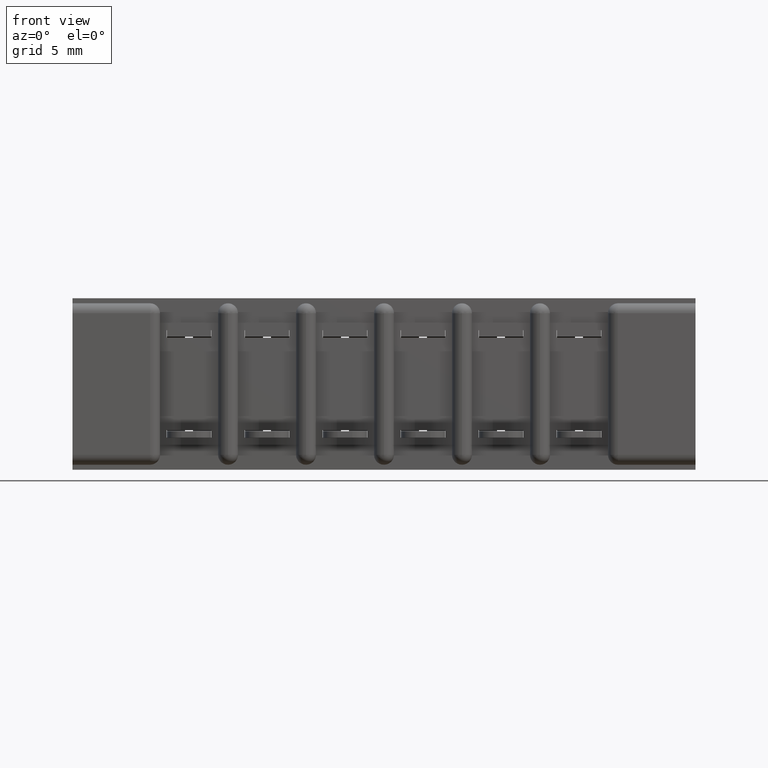
[diagram: clean part render]
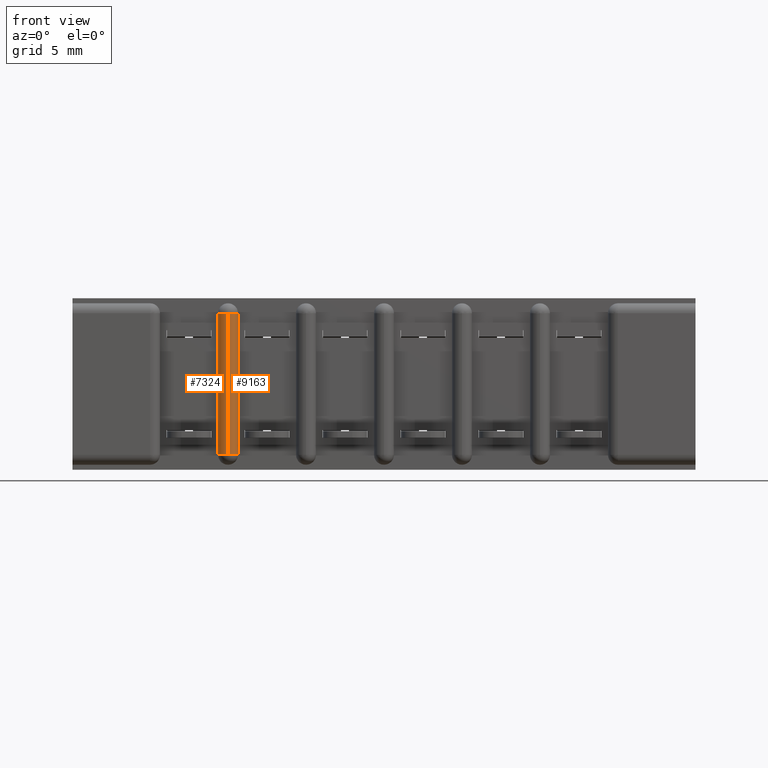
[diagram: same view with one multi-face feature highlighted, each face labeled with its STEP entity id]
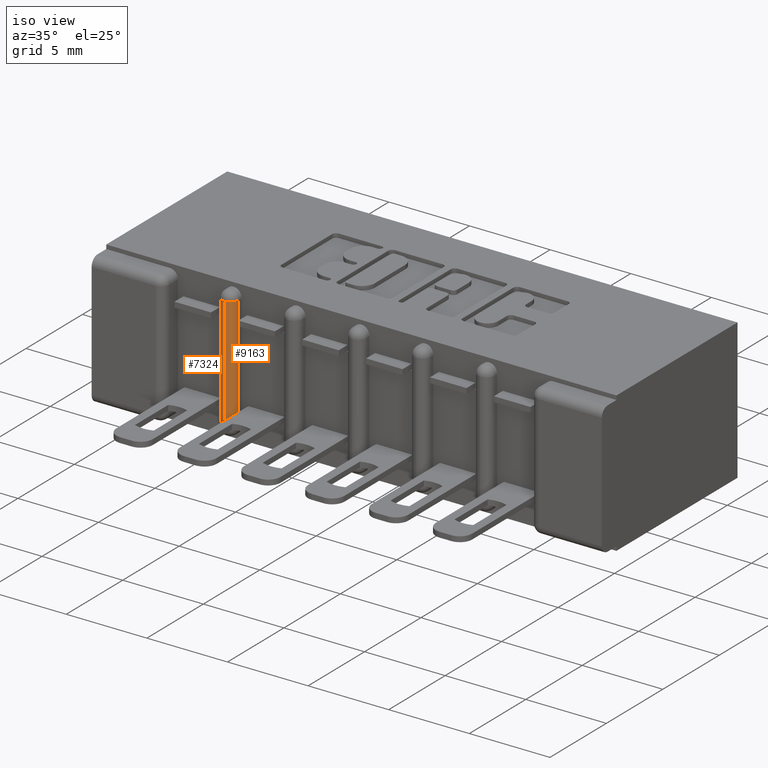
[diagram: same view with one multi-face feature highlighted, each face labeled with its STEP entity id]
A machine part, front view. The highlighted faces form ONE feature: a constant-radius fillet chain: 2 tangent blend faces with common blend radius 0.508 mm. The faces share edges in the B-rep.
A second angle (iso view) of the same feature is appended — it is thin or edge-on in the first view.
Their STEP definitions:
[1] entity #7324 (Cylinder):
#396 = DIRECTION ( 'NONE',  ( 0.0000000000000000000, 0.0000000000000000000, 1.000000000000000000 ) ) ;
#1853 = CARTESIAN_POINT ( 'NONE',  ( 0.6090000000000004300, 0.02000000000000000000, -0.3130000000000006700 ) ) ;
#2148 = LINE ( 'NONE', #2842, #4821 ) ;
#2341 = DIRECTION ( 'NONE',  ( -1.991142852524972300E-015, 0.0000000000000000000, 1.000000000000000000 ) ) ;
#2372 = CARTESIAN_POINT ( 'NONE',  ( 0.6090000000000005400, 0.04000000000000000100, -0.3430000000000001900 ) ) ;
#2483 = CIRCLE ( 'NONE', #5493, 0.01999999999999999000 ) ;
#2681 = DIRECTION ( 'NONE',  ( -1.000000000000000000, 0.0000000000000000000, 1.707404996040165300E-015 ) ) ;
#2842 = CARTESIAN_POINT ( 'NONE',  ( 0.6089999999999998700, 0.02000000000000000000, -0.02999999999999927000 ) ) ;
#2852 = CARTESIAN_POINT ( 'NONE',  ( 0.6090000000000005400, 0.04000000000000000100, -0.3130000000000007200 ) ) ;
#3402 = VERTEX_POINT ( 'NONE', #1853 ) ;
#3465 = EDGE_CURVE ( 'NONE', #9189, #3402, #8131, .T. ) ;
#3529 = CARTESIAN_POINT ( 'NONE',  ( 0.5889999999999999700, 0.04000000000000000100, -0.02999999999999930800 ) ) ;
#3547 = CARTESIAN_POINT ( 'NONE',  ( 0.6089999999999998700, 0.02000000000000000000, -0.02999999999999923200 ) ) ;
#3701 = FACE_OUTER_BOUND ( 'NONE', #6292, .T. ) ;
#4050 = ORIENTED_EDGE ( 'NONE', *, *, #3465, .T. ) ;
#4181 = EDGE_CURVE ( 'NONE', #3402, #4255, #2148, .T. ) ;
#4220 = DIRECTION ( 'NONE',  ( -1.707404996040229400E-015, -0.0000000000000000000, -1.000000000000000000 ) ) ;
#4255 = VERTEX_POINT ( 'NONE', #3547 ) ;
#4321 = DIRECTION ( 'NONE',  ( -1.592914282019978200E-015, 0.0000000000000000000, 1.000000000000000000 ) ) ;
#4639 = VECTOR ( 'NONE', #8165, 39.37007874015748100 ) ;
#4679 = ORIENTED_EDGE ( 'NONE', *, *, #8826, .F. ) ;
#4691 = AXIS2_PLACEMENT_3D ( 'NONE', #2372, #2341, #5367 ) ;
#4821 = VECTOR ( 'NONE', #4321, 39.37007874015748100 ) ;
#5367 = DIRECTION ( 'NONE',  ( 1.000000000000000000, 0.0000000000000000000, 3.414809992080318900E-015 ) ) ;
#5493 = AXIS2_PLACEMENT_3D ( 'NONE', #9676, #4220, #2681 ) ;
#5642 = AXIS2_PLACEMENT_3D ( 'NONE', #2852, #396, #9859 ) ;
#5713 = CARTESIAN_POINT ( 'NONE',  ( 0.5889999999999999700, 0.04000000000000000100, -0.02999999999999927000 ) ) ;
#5976 = LINE ( 'NONE', #3529, #4639 ) ;
#6292 = EDGE_LOOP ( 'NONE', ( #8966, #4679, #4050, #8984 ) ) ;
#7324 = ADVANCED_FACE ( 'NONE', ( #3701 ), #9542, .T. ) ;
#7600 = EDGE_CURVE ( 'NONE', #4255, #8045, #2483, .T. ) ;
#8045 = VERTEX_POINT ( 'NONE', #5713 ) ;
#8131 = CIRCLE ( 'NONE', #5642, 0.01999999999999999000 ) ;
#8165 = DIRECTION ( 'NONE',  ( -1.991142852524972300E-015, -0.0000000000000000000, 1.000000000000000000 ) ) ;
#8826 = EDGE_CURVE ( 'NONE', #9189, #8045, #5976, .T. ) ;
#8951 = CARTESIAN_POINT ( 'NONE',  ( 0.5890000000000004100, 0.04000000000000000100, -0.3130000000000007200 ) ) ;
#8966 = ORIENTED_EDGE ( 'NONE', *, *, #7600, .T. ) ;
#8984 = ORIENTED_EDGE ( 'NONE', *, *, #4181, .T. ) ;
#9189 = VERTEX_POINT ( 'NONE', #8951 ) ;
#9542 = CYLINDRICAL_SURFACE ( 'NONE', #4691, 0.02000000000000005900 ) ;
#9676 = CARTESIAN_POINT ( 'NONE',  ( 0.6089999999999998700, 0.04000000000000000100, -0.02999999999999930500 ) ) ;
#9859 = DIRECTION ( 'NONE',  ( 1.000000000000000000, 0.0000000000000000000, 0.0000000000000000000 ) ) ;
[2] entity #9163 (Cylinder):
#442 = VECTOR ( 'NONE', #3309, 39.37007874015748100 ) ;
#477 = ORIENTED_EDGE ( 'NONE', *, *, #6354, .F. ) ;
#507 = CARTESIAN_POINT ( 'NONE',  ( 0.6089999999999991000, 0.04000000000000000100, -0.02999999999999930500 ) ) ;
#877 = CIRCLE ( 'NONE', #8217, 0.01999999999999999000 ) ;
#1012 = DIRECTION ( 'NONE',  ( 0.0000000000000000000, 0.0000000000000000000, -1.000000000000000000 ) ) ;
#1071 = CARTESIAN_POINT ( 'NONE',  ( 0.6290000000000003400, 0.04000000000000000100, -0.3130000000000007200 ) ) ;
#1198 = DIRECTION ( 'NONE',  ( -1.000000000000000000, 0.0000000000000000000, -1.707404996040165300E-015 ) ) ;
#1366 = CYLINDRICAL_SURFACE ( 'NONE', #7477, 0.01999999999999999000 ) ;
#1510 = EDGE_CURVE ( 'NONE', #2184, #4255, #877, .T. ) ;
#1849 = EDGE_CURVE ( 'NONE', #2545, #3402, #4512, .T. ) ;
#1853 = CARTESIAN_POINT ( 'NONE',  ( 0.6090000000000004300, 0.02000000000000000000, -0.3130000000000006700 ) ) ;
#1861 = DIRECTION ( 'NONE',  ( 1.592914282019978000E-015, 0.0000000000000000000, -1.000000000000000000 ) ) ;
#1938 = DIRECTION ( 'NONE',  ( -1.000000000000000000, 0.0000000000000000000, 0.0000000000000000000 ) ) ;
#2120 = CARTESIAN_POINT ( 'NONE',  ( 0.6289999999999997800, 0.04000000000000000100, -0.02999999999999927000 ) ) ;
#2148 = LINE ( 'NONE', #2842, #4821 ) ;
#2184 = VERTEX_POINT ( 'NONE', #2120 ) ;
#2545 = VERTEX_POINT ( 'NONE', #2591 ) ;
#2569 = CARTESIAN_POINT ( 'NONE',  ( 0.6090000000000003200, 0.04000000000000000100, -0.3130000000000007200 ) ) ;
#2591 = CARTESIAN_POINT ( 'NONE',  ( 0.6290000000000003400, 0.04000000000000000100, -0.3130000000000007200 ) ) ;
#2842 = CARTESIAN_POINT ( 'NONE',  ( 0.6089999999999998700, 0.02000000000000000000, -0.02999999999999927000 ) ) ;
#3309 = DIRECTION ( 'NONE',  ( 1.592914282019978200E-015, -0.0000000000000000000, -1.000000000000000000 ) ) ;
#3402 = VERTEX_POINT ( 'NONE', #1853 ) ;
#3484 = DIRECTION ( 'NONE',  ( 1.707404996040165200E-015, 6.413510005106414000E-029, -1.000000000000000000 ) ) ;
#3547 = CARTESIAN_POINT ( 'NONE',  ( 0.6089999999999998700, 0.02000000000000000000, -0.02999999999999923200 ) ) ;
#4181 = EDGE_CURVE ( 'NONE', #3402, #4255, #2148, .T. ) ;
#4255 = VERTEX_POINT ( 'NONE', #3547 ) ;
#4321 = DIRECTION ( 'NONE',  ( -1.592914282019978200E-015, 0.0000000000000000000, 1.000000000000000000 ) ) ;
#4512 = CIRCLE ( 'NONE', #6974, 0.01999999999999999000 ) ;
#4515 = FACE_OUTER_BOUND ( 'NONE', #9064, .T. ) ;
#4821 = VECTOR ( 'NONE', #4321, 39.37007874015748100 ) ;
#6354 = EDGE_CURVE ( 'NONE', #2184, #2545, #8591, .T. ) ;
#6974 = AXIS2_PLACEMENT_3D ( 'NONE', #2569, #1012, #8760 ) ;
#7063 = ORIENTED_EDGE ( 'NONE', *, *, #4181, .F. ) ;
#7384 = CARTESIAN_POINT ( 'NONE',  ( 0.6090000000000003200, 0.04000000000000000100, -0.3430000000000001400 ) ) ;
#7477 = AXIS2_PLACEMENT_3D ( 'NONE', #7384, #1861, #1938 ) ;
#7872 = ORIENTED_EDGE ( 'NONE', *, *, #1849, .F. ) ;
#8205 = ORIENTED_EDGE ( 'NONE', *, *, #1510, .T. ) ;
#8217 = AXIS2_PLACEMENT_3D ( 'NONE', #507, #3484, #1198 ) ;
#8591 = LINE ( 'NONE', #1071, #442 ) ;
#8760 = DIRECTION ( 'NONE',  ( -1.000000000000000000, 0.0000000000000000000, 0.0000000000000000000 ) ) ;
#9064 = EDGE_LOOP ( 'NONE', ( #7872, #477, #8205, #7063 ) ) ;
#9163 = ADVANCED_FACE ( 'NONE', ( #4515 ), #1366, .T. ) ;